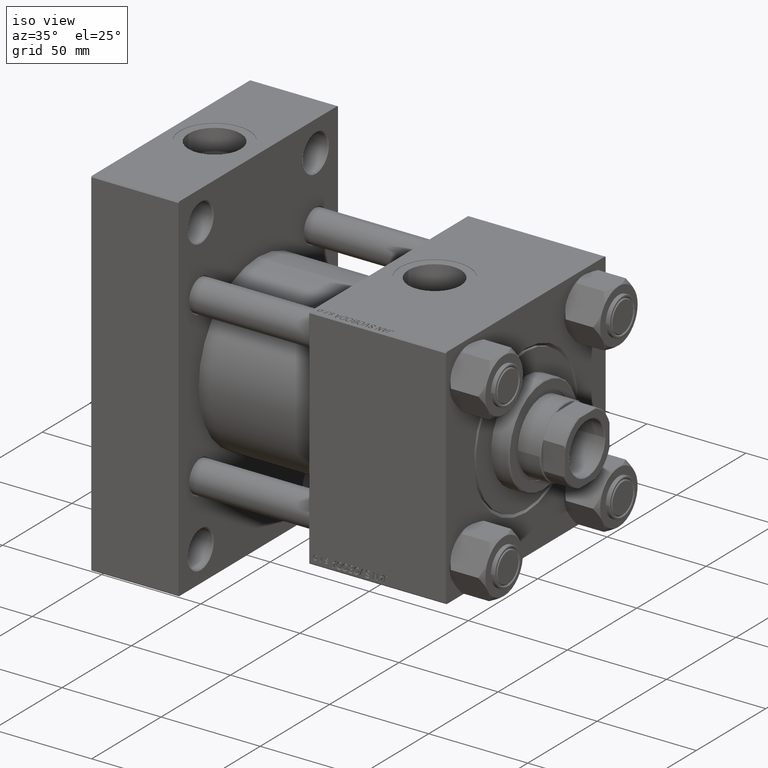
[diagram: clean part render]
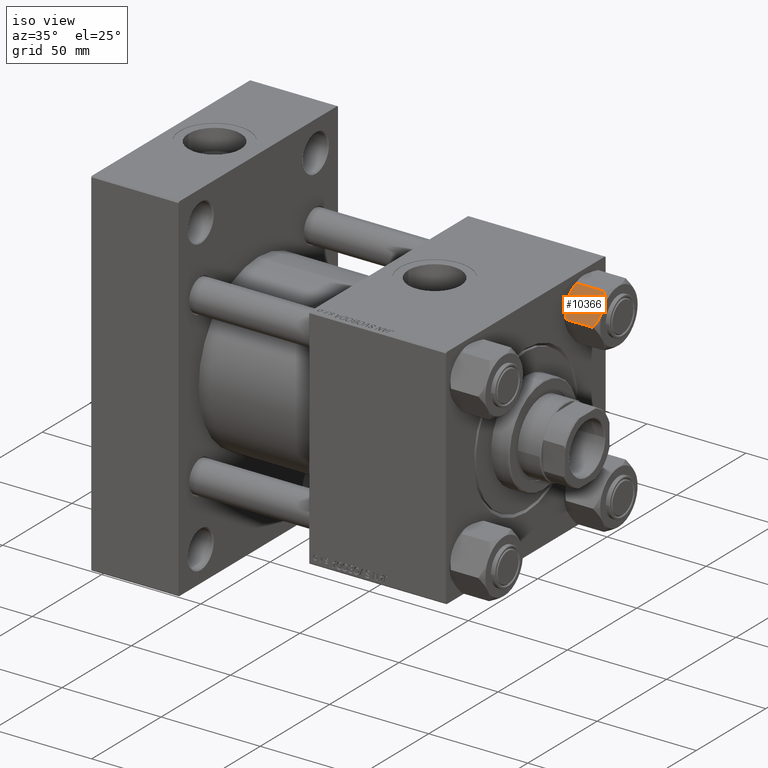
[diagram: same view with one face highlighted and labeled with its STEP entity id]
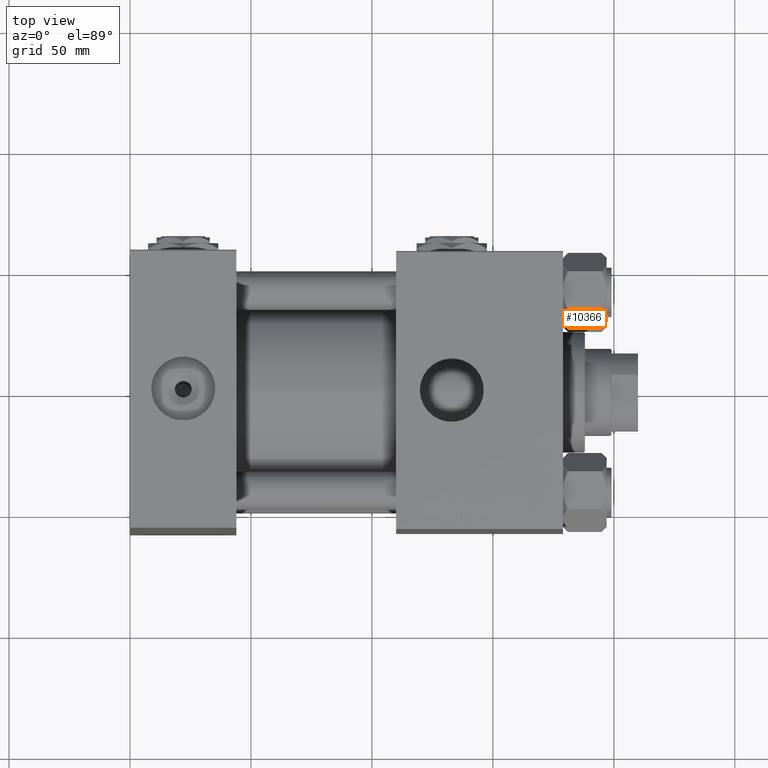
[diagram: same view with one face highlighted and labeled with its STEP entity id]
A machine part, iso view. The second image highlights one B-rep face of the part: STEP entity #10366.
A second angle (top view) of the same face is appended — the face is thin or edge-on in the first view.
In plain terms, the highlighted planar face has unit normal (0, 0.866, -0.5).
Its self-contained STEP definition (entity closure, byte-faithful):
#220 = CARTESIAN_POINT ( 'NONE',  ( -15.61999999999999567, 8.023367828467702033E-15, -16.00000000000000000 ) ) ;
#982 = EDGE_CURVE ( 'NONE', #30461, #38992, #7268, .T. ) ;
#1548 = ORIENTED_EDGE ( 'NONE', *, *, #51515, .F. ) ;
#2228 = VECTOR ( 'NONE', #14722, 1000.000000000000000 ) ;
#2423 = EDGE_CURVE ( 'NONE', #23066, #5825, #9938, .T. ) ;
#2508 = CARTESIAN_POINT ( 'NONE',  ( -11.04378428799594580, 7.926238119586001218, -0.05089381635301955947 ) ) ;
#2804 = VECTOR ( 'NONE', #8784, 999.9999999999998863 ) ;
#2850 = EDGE_CURVE ( 'NONE', #24980, #37596, #14862, .T. ) ;
#4227 = EDGE_CURVE ( 'NONE', #25247, #18138, #4585, .T. ) ;
#4574 = CARTESIAN_POINT ( 'NONE',  ( -15.61999999999999567, 8.023367828467702033E-15, -1.999999999999998224 ) ) ;
#4585 = B_SPLINE_CURVE_WITH_KNOTS ( 'NONE', 3,
 ( #30526, #22804, #10598, #39024, #26273, #22023, #21748, #26004 ),
 .UNSPECIFIED., .F., .F.,
 ( 4, 2, 2, 4 ),
 ( 0.007890825462474408344, 0.01181022244528551549, 0.01376992093669106992, 0.01572961942809662436 ),
 .UNSPECIFIED. ) ;
#4862 = EDGE_CURVE ( 'NONE', #24539, #25247, #33120, .T. ) ;
#5494 = EDGE_LOOP ( 'NONE', ( #50344, #24138, #37363, #29412, #22283, #20126, #46167, #45129, #23295, #1548 ) ) ;
#5572 = CARTESIAN_POINT ( 'NONE',  ( -13.36540581434587693, 3.905071680002328183, -17.61639331488793658 ) ) ;
#5825 = VERTEX_POINT ( 'NONE', #4574 ) ;
#6741 = CARTESIAN_POINT ( 'NONE',  ( -9.114548888011789529, 11.26777185211903110, -0.9142282604026957804 ) ) ;
#6838 = CARTESIAN_POINT ( 'NONE',  ( -7.809999999999996945, 13.52731680711293727, -16.00000000000000000 ) ) ;
#7268 = LINE ( 'NONE', #27460, #2228 ) ;
#7407 = LINE ( 'NONE', #27857, #46305 ) ;
#7513 = AXIS2_PLACEMENT_3D ( 'NONE', #11161, #32389, #35842 ) ;
#7976 = CARTESIAN_POINT ( 'NONE',  ( -11.05297796109638675, 7.910314210667875656, -17.99999999999999645 ) ) ;
#8449 = LINE ( 'NONE', #220, #22139 ) ;
#8784 = DIRECTION ( 'NONE',  ( 0.4999999999999999445, 0.8660254037844387076, 0.000000000000000000 ) ) ;
#9938 = LINE ( 'NONE', #45787, #52274 ) ;
#10366 = ADVANCED_FACE ( 'NONE', ( #31343 ), #28132, .F. ) ;
#10598 = CARTESIAN_POINT ( 'NONE',  ( -13.02784502466562522, 4.489744118371592485, -0.1971866459924597748 ) ) ;
#11161 = CARTESIAN_POINT ( 'NONE',  ( -15.61999999999999567, 8.023367828467702033E-15, -18.00000000000000000 ) ) ;
#11974 = CARTESIAN_POINT ( 'NONE',  ( -9.124083218049243271, 11.25125790807802240, -17.05261278537717828 ) ) ;
#13044 = CARTESIAN_POINT ( 'NONE',  ( -12.38621571200405391, 5.601078687526930722, -17.94910618364698252 ) ) ;
#14722 = DIRECTION ( 'NONE',  ( -0.000000000000000000, -0.000000000000000000, 1.000000000000000000 ) ) ;
#14862 = B_SPLINE_CURVE_WITH_KNOTS ( 'NONE', 3,
 ( #48349, #7976, #51804, #39857, #11974, #28163, #44100, #44359 ),
 .UNSPECIFIED., .F., .F.,
 ( 4, 2, 2, 4 ),
 ( 0.007890825462474413549, 0.01181022244528551549, 0.01376992093669106992, 0.01572961942809662436 ),
 .UNSPECIFIED. ) ;
#17663 = CARTESIAN_POINT ( 'NONE',  ( -7.903528262322682352, 13.36532110482641400, -16.00000000000000000 ) ) ;
#18004 = CARTESIAN_POINT ( 'NONE',  ( -15.61999999999999567, 8.023367828467702033E-15, -16.00000000000000000 ) ) ;
#18138 = VERTEX_POINT ( 'NONE', #24648 ) ;
#18662 = CARTESIAN_POINT ( 'NONE',  ( -11.71499999999999631, 6.763658403556463306, 0.000000000000000000 ) ) ;
#20126 = ORIENTED_EDGE ( 'NONE', *, *, #41638, .F. ) ;
#20215 = LINE ( 'NONE', #36159, #2804 ) ;
#20995 = CARTESIAN_POINT ( 'NONE',  ( -14.31545111198820663, 2.259544954993902177, -17.08577173959729123 ) ) ;
#21748 = CARTESIAN_POINT ( 'NONE',  ( -15.22736220980734778, 0.6800686015852358546, -1.706311779141444163 ) ) ;
#21789 = CARTESIAN_POINT ( 'NONE',  ( -13.04337073483127796, 4.462852799541088267, -17.75691532989869614 ) ) ;
#22023 = CARTESIAN_POINT ( 'NONE',  ( -14.92394044919337759, 1.205610507090642658, -1.434462921875004238 ) ) ;
#22139 = VECTOR ( 'NONE', #48564, 999.9999999999998863 ) ;
#22283 = ORIENTED_EDGE ( 'NONE', *, *, #4862, .F. ) ;
#22804 = CARTESIAN_POINT ( 'NONE',  ( -12.37702203890362362, 5.617002596445057172, -3.577867169202160688E-15 ) ) ;
#22947 = CARTESIAN_POINT ( 'NONE',  ( -11.38181071908714515, 7.340759166634867938, -4.045429356086536842E-15 ) ) ;
#22996 = EDGE_CURVE ( 'NONE', #37596, #30461, #8449, .T. ) ;
#23066 = VERTEX_POINT ( 'NONE', #18004 ) ;
#23295 = ORIENTED_EDGE ( 'NONE', *, *, #2850, .F. ) ;
#23300 = DIRECTION ( 'NONE',  ( -0.4999999999999999445, -0.8660254037844387076, 0.000000000000000000 ) ) ;
#24138 = ORIENTED_EDGE ( 'NONE', *, *, #2423, .T. ) ;
#24539 = VERTEX_POINT ( 'NONE', #38431 ) ;
#24648 = CARTESIAN_POINT ( 'NONE',  ( -15.52647173767731736, 0.1619957022865152474, -2.000000000000000000 ) ) ;
#24980 = VERTEX_POINT ( 'NONE', #43680 ) ;
#25247 = VERTEX_POINT ( 'NONE', #18662 ) ;
#25762 = VERTEX_POINT ( 'NONE', #35725 ) ;
#26004 = CARTESIAN_POINT ( 'NONE',  ( -15.52647173767731736, 0.1619957022865152474, -2.000000000000000000 ) ) ;
#26273 = CARTESIAN_POINT ( 'NONE',  ( -14.30591678195075644, 2.276058899034906435, -0.9473872146228152769 ) ) ;
#27192 = CARTESIAN_POINT ( 'NONE',  ( -7.903528262322682352, 13.36532110482641400, -2.000000000000000000 ) ) ;
#27287 = LINE ( 'NONE', #44006, #37367 ) ;
#27460 = CARTESIAN_POINT ( 'NONE',  ( -7.809999999999996945, 13.52731680711293727, -18.00000000000000000 ) ) ;
#27857 = CARTESIAN_POINT ( 'NONE',  ( -15.61999999999999567, 8.023367828467702033E-15, -1.999999999999998224 ) ) ;
#28132 = PLANE ( 'NONE',  #7513 ) ;
#28163 = CARTESIAN_POINT ( 'NONE',  ( -8.506059550806625680, 12.32170630002228684, -16.56553707812498288 ) ) ;
#28543 = CARTESIAN_POINT ( 'NONE',  ( -7.809999999999996945, 13.52731680711293727, -1.999999999999998224 ) ) ;
#29233 = CARTESIAN_POINT ( 'NONE',  ( -12.04818928091285635, 6.186557640478062225, -17.99999999999999289 ) ) ;
#29369 = B_SPLINE_CURVE_WITH_KNOTS ( 'NONE', 3,
 ( #38002, #41190, #20995, #5572, #21789, #13044, #29233, #50214 ),
 .UNSPECIFIED., .F., .F.,
 ( 4, 2, 2, 4 ),
 ( 4.472842641925297170E-07, 0.003945636373369303118, 0.005918230917921858333, 0.007890825462474413549 ),
 .UNSPECIFIED. ) ;
#29412 = ORIENTED_EDGE ( 'NONE', *, *, #4227, .F. ) ;
#30461 = VERTEX_POINT ( 'NONE', #6838 ) ;
#30526 = CARTESIAN_POINT ( 'NONE',  ( -11.71499999999999631, 6.763658403556463306, 0.000000000000000000 ) ) ;
#30841 = EDGE_CURVE ( 'NONE', #23066, #25762, #20215, .T. ) ;
#31343 = FACE_OUTER_BOUND ( 'NONE', #5494, .T. ) ;
#31450 = CARTESIAN_POINT ( 'NONE',  ( -11.71499999999999631, 6.763658403556463306, 0.000000000000000000 ) ) ;
#32389 = DIRECTION ( 'NONE',  ( 0.8660254037844387076, -0.4999999999999999445, 0.000000000000000000 ) ) ;
#33120 = B_SPLINE_CURVE_WITH_KNOTS ( 'NONE', 3,
 ( #27192, #39156, #6741, #43651, #42870, #2508, #22947, #31450 ),
 .UNSPECIFIED., .F., .F.,
 ( 4, 2, 2, 4 ),
 ( 4.472842641874880181E-07, 0.003945636373369299649, 0.005918230917921853997, 0.007890825462474408344 ),
 .UNSPECIFIED. ) ;
#33853 = DIRECTION ( 'NONE',  ( -0.000000000000000000, -0.000000000000000000, 1.000000000000000000 ) ) ;
#35725 = CARTESIAN_POINT ( 'NONE',  ( -15.52647173767731736, 0.1619957022865152474, -16.00000000000000000 ) ) ;
#35842 = DIRECTION ( 'NONE',  ( 0.4999999999999998890, 0.8660254037844385966, 0.000000000000000000 ) ) ;
#36159 = CARTESIAN_POINT ( 'NONE',  ( -15.61999999999999567, 8.023367828467702033E-15, -16.00000000000000000 ) ) ;
#37363 = ORIENTED_EDGE ( 'NONE', *, *, #50695, .F. ) ;
#37367 = VECTOR ( 'NONE', #23300, 999.9999999999998863 ) ;
#37596 = VERTEX_POINT ( 'NONE', #17663 ) ;
#38002 = CARTESIAN_POINT ( 'NONE',  ( -15.52647173767731736, 0.1619957022865152474, -16.00000000000000000 ) ) ;
#38431 = CARTESIAN_POINT ( 'NONE',  ( -7.903528262322682352, 13.36532110482641400, -2.000000000000000000 ) ) ;
#38992 = VERTEX_POINT ( 'NONE', #28543 ) ;
#39024 = CARTESIAN_POINT ( 'NONE',  ( -13.99051971937273287, 2.822342635978016379, -0.7317196846281162070 ) ) ;
#39156 = CARTESIAN_POINT ( 'NONE',  ( -8.502393313253760354, 12.32805640973647598, -1.411989271640069488 ) ) ;
#39857 = CARTESIAN_POINT ( 'NONE',  ( -9.439480280627265074, 10.70497417113491601, -17.26828031537187869 ) ) ;
#41190 = CARTESIAN_POINT ( 'NONE',  ( -14.92760668674624114, 1.199260397376460840, -16.58801072835992940 ) ) ;
#41638 = EDGE_CURVE ( 'NONE', #38992, #24539, #7407, .T. ) ;
#42870 = CARTESIAN_POINT ( 'NONE',  ( -10.38662926516872176, 9.064464007571844562, -0.2430846701013017475 ) ) ;
#43538 = DIRECTION ( 'NONE',  ( -0.4999999999999999445, -0.8660254037844387076, 0.000000000000000000 ) ) ;
#43651 = CARTESIAN_POINT ( 'NONE',  ( -10.06459418565412456, 9.622245127110602425, -0.3836066851120624177 ) ) ;
#43680 = CARTESIAN_POINT ( 'NONE',  ( -11.71499999999999631, 6.763658403556463306, -18.00000000000000000 ) ) ;
#44006 = CARTESIAN_POINT ( 'NONE',  ( -15.61999999999999567, 8.023367828467702033E-15, -1.999999999999998224 ) ) ;
#44100 = CARTESIAN_POINT ( 'NONE',  ( -8.202637790192651934, 12.84724820552769486, -16.29368822085855228 ) ) ;
#44359 = CARTESIAN_POINT ( 'NONE',  ( -7.903528262322682352, 13.36532110482641400, -16.00000000000000000 ) ) ;
#45129 = ORIENTED_EDGE ( 'NONE', *, *, #22996, .F. ) ;
#45787 = CARTESIAN_POINT ( 'NONE',  ( -15.61999999999999567, 8.023367828467702033E-15, -18.00000000000000000 ) ) ;
#46167 = ORIENTED_EDGE ( 'NONE', *, *, #982, .F. ) ;
#46305 = VECTOR ( 'NONE', #43538, 999.9999999999998863 ) ;
#48349 = CARTESIAN_POINT ( 'NONE',  ( -11.71499999999999631, 6.763658403556463306, -18.00000000000000000 ) ) ;
#48564 = DIRECTION ( 'NONE',  ( 0.4999999999999999445, 0.8660254037844387076, 0.000000000000000000 ) ) ;
#50214 = CARTESIAN_POINT ( 'NONE',  ( -11.71499999999999631, 6.763658403556463306, -18.00000000000000000 ) ) ;
#50344 = ORIENTED_EDGE ( 'NONE', *, *, #30841, .F. ) ;
#50695 = EDGE_CURVE ( 'NONE', #18138, #5825, #27287, .T. ) ;
#51515 = EDGE_CURVE ( 'NONE', #25762, #24980, #29369, .T. ) ;
#51804 = CARTESIAN_POINT ( 'NONE',  ( -10.40215497533437805, 9.037572688741343896, -17.80281335400754372 ) ) ;
#52274 = VECTOR ( 'NONE', #33853, 1000.000000000000000 ) ;